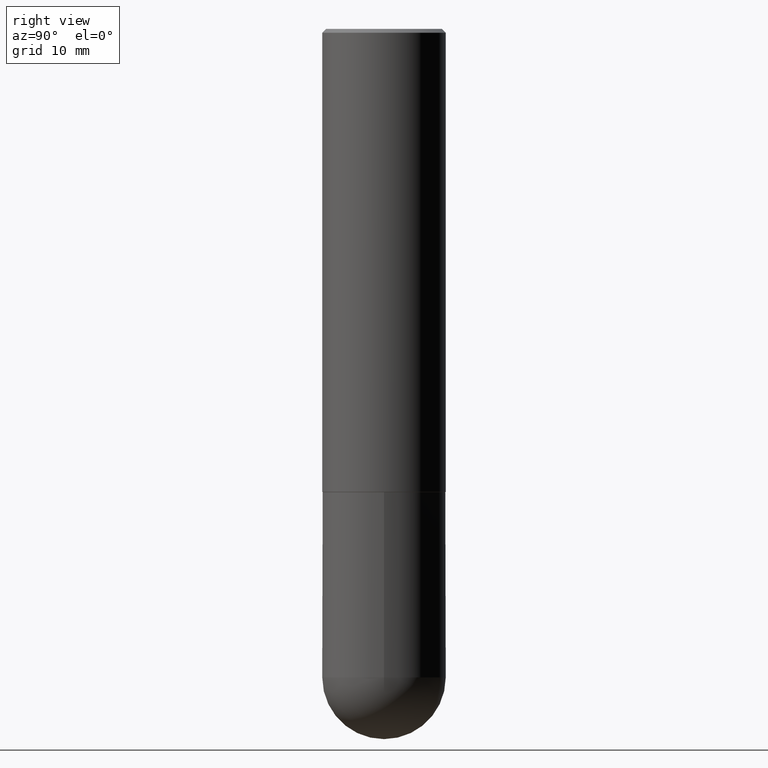
[diagram: clean part render]
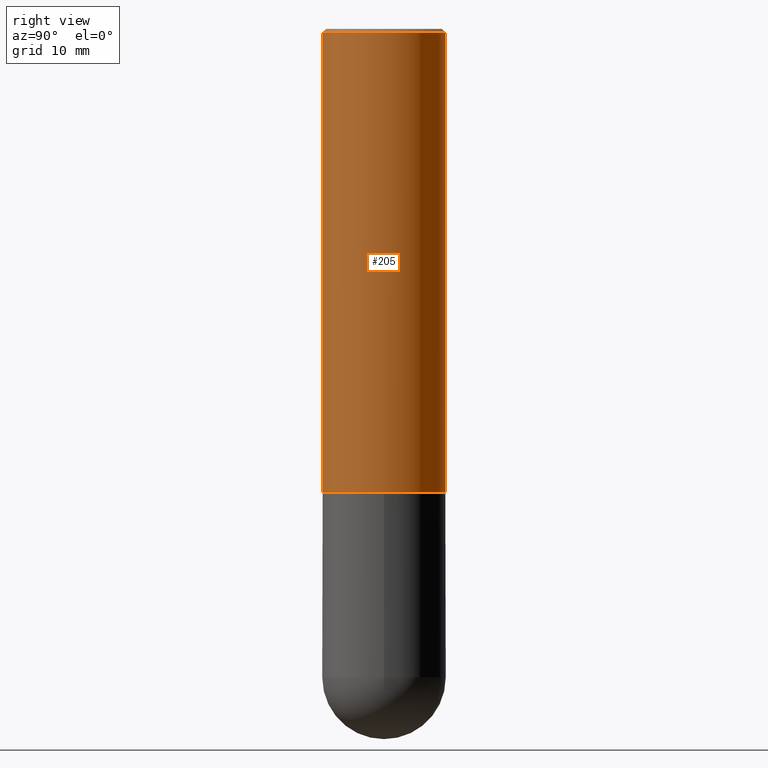
[diagram: same view with one face highlighted and labeled with its STEP entity id]
A machine part, right view. The second image highlights one B-rep face of the part: STEP entity #205.
In plain terms, the highlighted cylindrical surface (partial cylindrical patch) has radius 7.9997 mm, axis along (-0, 0, 1).
Its self-contained STEP definition (entity closure, byte-faithful):
#1 = CARTESIAN_POINT ( 'NONE',  ( 2.237854346276465567E-15, 0.3149499999999920141, -2.361200000000000632 ) ) ;
#6 = CARTESIAN_POINT ( 'NONE',  ( -2.160713844398143363E-15, -0.3149500000000000632, -0.01999999999999896999 ) ) ;
#39 = DIRECTION ( 'NONE',  ( -2.444863750846570139E-29, 3.492347812525583981E-15, 1.000000000000000000 ) ) ;
#56 = DIRECTION ( 'NONE',  ( -2.444863750846570139E-29, 3.492347812525583981E-15, 1.000000000000000000 ) ) ;
#67 = CARTESIAN_POINT ( 'NONE',  ( 0.000000000000000000, 0.000000000000000000, 0.000000000000000000 ) ) ;
#85 = EDGE_CURVE ( 'NONE', #120, #143, #202, .T. ) ;
#93 = CARTESIAN_POINT ( 'NONE',  ( 2.237854346276435985E-15, 0.3149500000000001743, -1.099914943554933292E-15 ) ) ;
#100 = FACE_OUTER_BOUND ( 'NONE', #176, .T. ) ;
#102 = ORIENTED_EDGE ( 'NONE', *, *, #305, .T. ) ;
#115 = EDGE_CURVE ( 'NONE', #189, #143, #129, .T. ) ;
#116 = AXIS2_PLACEMENT_3D ( 'NONE', #412, #56, #307 ) ;
#120 = VERTEX_POINT ( 'NONE', #6 ) ;
#129 = LINE ( 'NONE', #93, #194 ) ;
#134 = AXIS2_PLACEMENT_3D ( 'NONE', #67, #39, #159 ) ;
#143 = VERTEX_POINT ( 'NONE', #345 ) ;
#147 = DIRECTION ( 'NONE',  ( -2.444863750846570419E-29, 3.492347812525583981E-15, 1.000000000000000000 ) ) ;
#153 = CARTESIAN_POINT ( 'NONE',  ( -2.199284095337290265E-15, -0.3149500000000001743, 1.099914943554933292E-15 ) ) ;
#159 = DIRECTION ( 'NONE',  ( -6.982962677686264344E-15, -1.000000000000000000, 3.492347812525583981E-15 ) ) ;
#176 = EDGE_LOOP ( 'NONE', ( #102, #230, #410, #356 ) ) ;
#189 = VERTEX_POINT ( 'NONE', #1 ) ;
#194 = VECTOR ( 'NONE', #318, 39.37007874015748143 ) ;
#202 = CIRCLE ( 'NONE', #258, 0.3149500000000000077 ) ;
#205 = ADVANCED_FACE ( 'NONE', ( #100 ), #348, .T. ) ;
#216 = CIRCLE ( 'NONE', #116, 0.3149500000000002853 ) ;
#230 = ORIENTED_EDGE ( 'NONE', *, *, #115, .T. ) ;
#245 = LINE ( 'NONE', #153, #351 ) ;
#258 = AXIS2_PLACEMENT_3D ( 'NONE', #338, #375, #310 ) ;
#305 = EDGE_CURVE ( 'NONE', #314, #189, #216, .T. ) ;
#307 = DIRECTION ( 'NONE',  ( -6.982962677686265922E-15, -1.000000000000000000, 3.469564049740290009E-15 ) ) ;
#310 = DIRECTION ( 'NONE',  ( -6.982962677686265922E-15, -1.000000000000000000, 3.496670018878889100E-15 ) ) ;
#314 = VERTEX_POINT ( 'NONE', #343 ) ;
#318 = DIRECTION ( 'NONE',  ( -2.444863750846570419E-29, 3.492347812525583981E-15, 1.000000000000000000 ) ) ;
#338 = CARTESIAN_POINT ( 'NONE',  ( 4.889727501693158145E-31, -6.984695625051194290E-17, -0.02000000000000007327 ) ) ;
#343 = CARTESIAN_POINT ( 'NONE',  ( -2.199284095337233467E-15, -0.3149500000000085564, -2.361199999999998411 ) ) ;
#345 = CARTESIAN_POINT ( 'NONE',  ( 2.199284095337289871E-15, 0.3149499999999999522, -0.02000000000000117309 ) ) ;
#348 = CYLINDRICAL_SURFACE ( 'NONE', #134, 0.3149500000000001743 ) ;
#351 = VECTOR ( 'NONE', #147, 39.37007874015748143 ) ;
#356 = ORIENTED_EDGE ( 'NONE', *, *, #374, .F. ) ;
#374 = EDGE_CURVE ( 'NONE', #314, #120, #245, .T. ) ;
#375 = DIRECTION ( 'NONE',  ( -2.444863750846570139E-29, 3.492347812525583981E-15, 1.000000000000000000 ) ) ;
#410 = ORIENTED_EDGE ( 'NONE', *, *, #85, .F. ) ;
#412 = CARTESIAN_POINT ( 'NONE',  ( 5.772812288498920287E-29, -8.246131654935407523E-15, -2.361199999999999743 ) ) ;